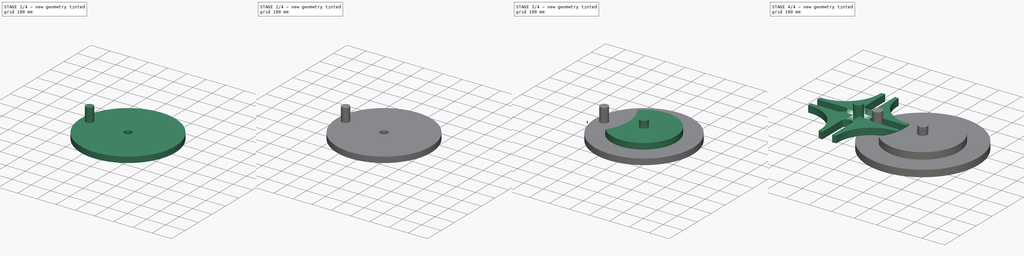
[diagram: build sequence overview — one tinted view per stage of 4, left to right]
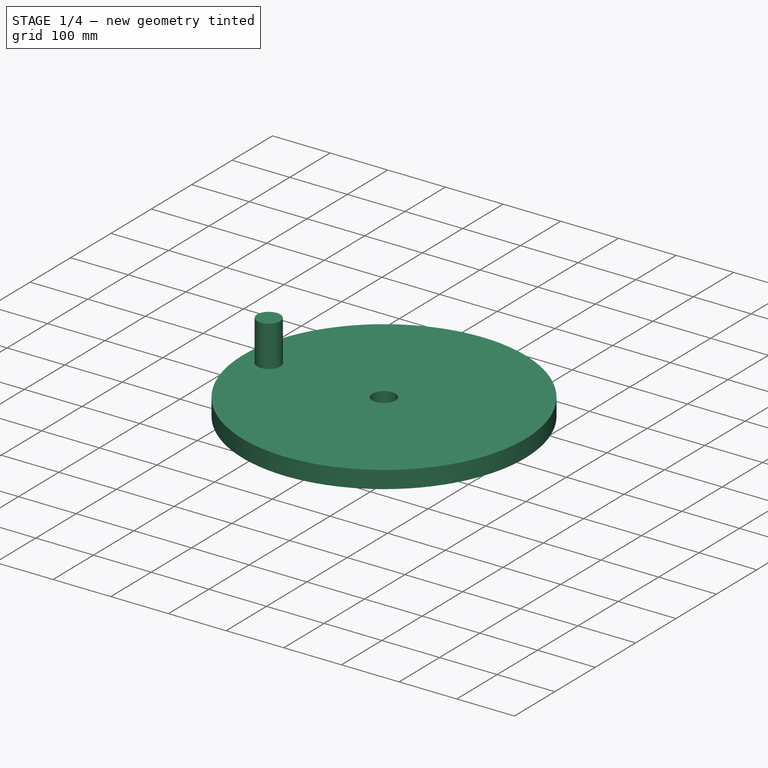
[diagram: stage 1 of 4 — iso view after this stage's code; geometry added in this stage tinted green]
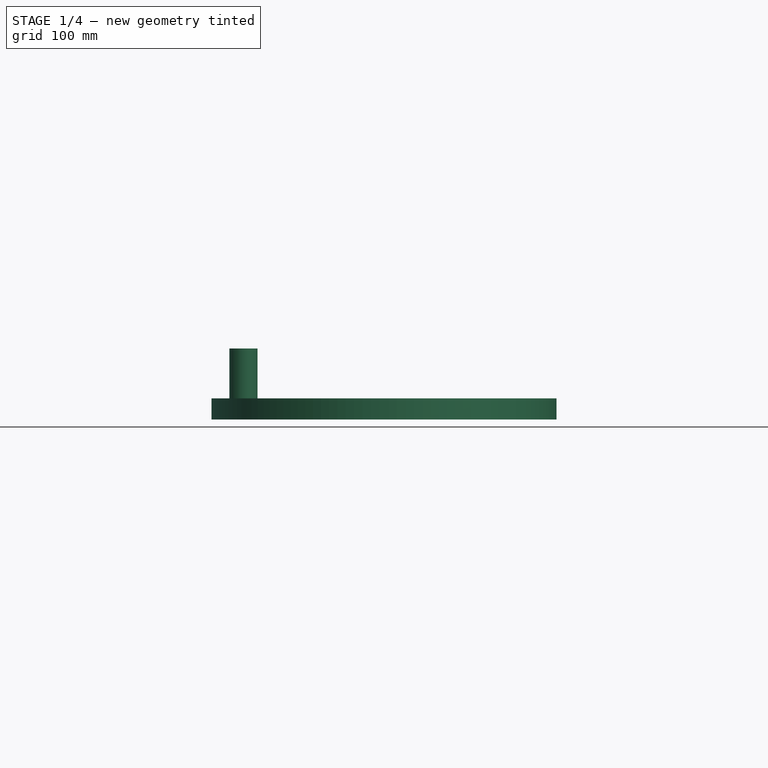
[diagram: stage 1 of 4 — front view after this stage's code; geometry added in this stage tinted green]
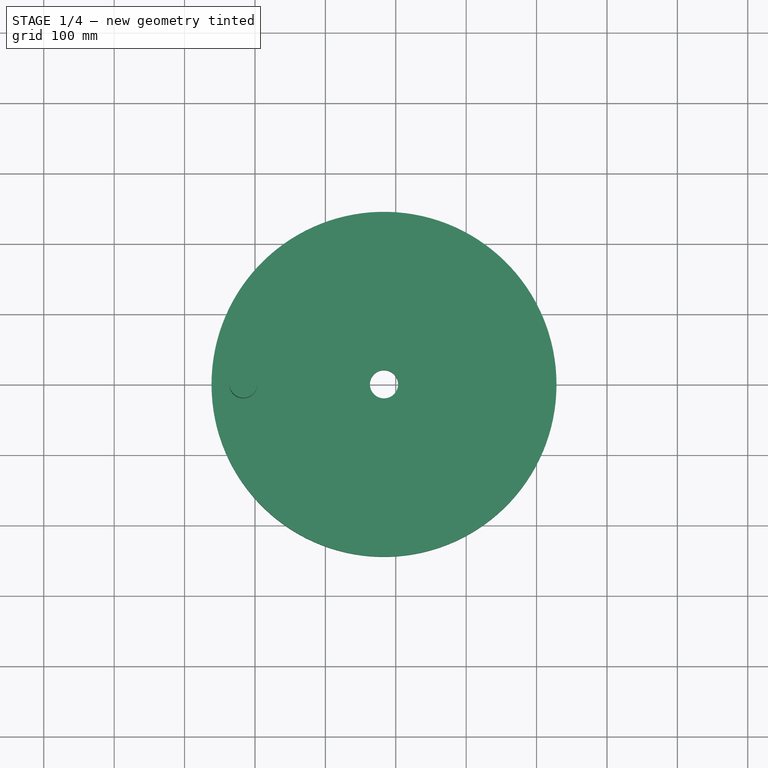
[diagram: stage 1 of 4 — top view after this stage's code; geometry added in this stage tinted green]
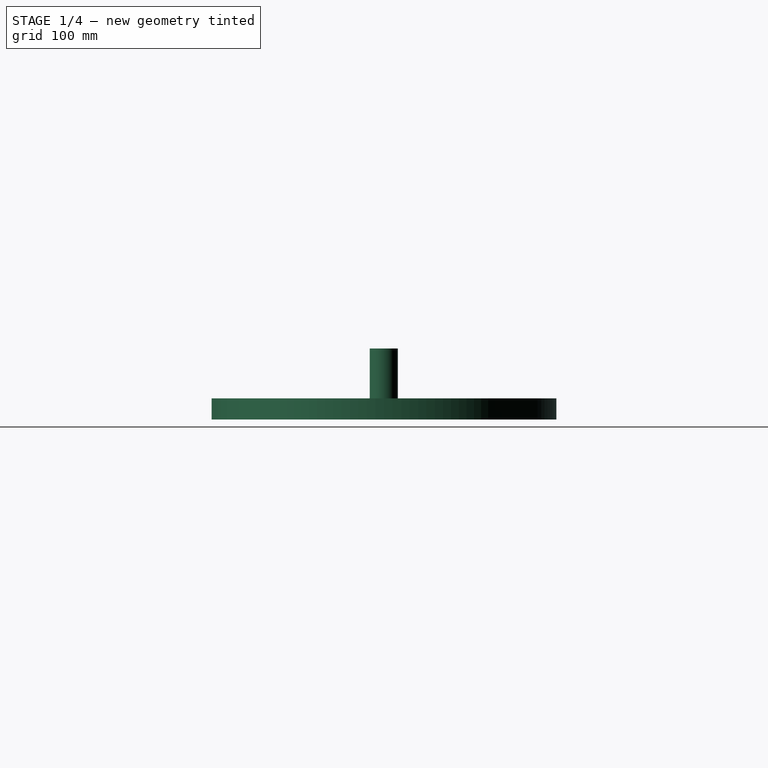
[diagram: stage 1 of 4 — right view after this stage's code; geometry added in this stage tinted green]
FCSTD DOCUMENT  (FreeCAD 0.18R4 (GitTag))
Label: genevatutorial7
License: All rights reserved
LicenseURL: http://en.wikipedia.org/wiki/All_rights_reserved
objects: Part::FeaturePython×5, Sketcher::SketchObject×4, PartDesign::Pad×3, PartDesign::Body×3, Part::Compound×3, Part::Cylinder×2
note: 23 computed .brp shape members not serialized (recipe doc carries the construction recipe); baked Part::Feature solids carry a one-line shape summary decoded from their .brp

FEATURE [PartDesign::Body] Body002  label="LockWheel001"
  Group = -> [Sketch001,Pad001]
  Origin = -> Origin002
  Tip = -> Pad001
FEATURE [PartDesign::Pad] Pad002
  Length = 30
  Length2 = 100
  Profile = -> Sketch003
  Type = 0
FEATURE [Part::Cylinder] Cylinder001  label="Cylinder"
  Angle = 360
  AttacherType = Attacher::AttachEngine3D
  Height = 10
  Placement = pos=(263,0,92) rot=(0,0,1;0rad)
  Radius = 2
FEATURE [Part::FeaturePython] Scale002  label="LockWheelPin"  # Draft clone (typed FeaturePython)
  Fuse = false
  Objects = -> [Cylinder001]
  Placement = pos=(83.5731,0.32925,1) rot=(0,0,1;0rad)
  Scale = (10,10,10)
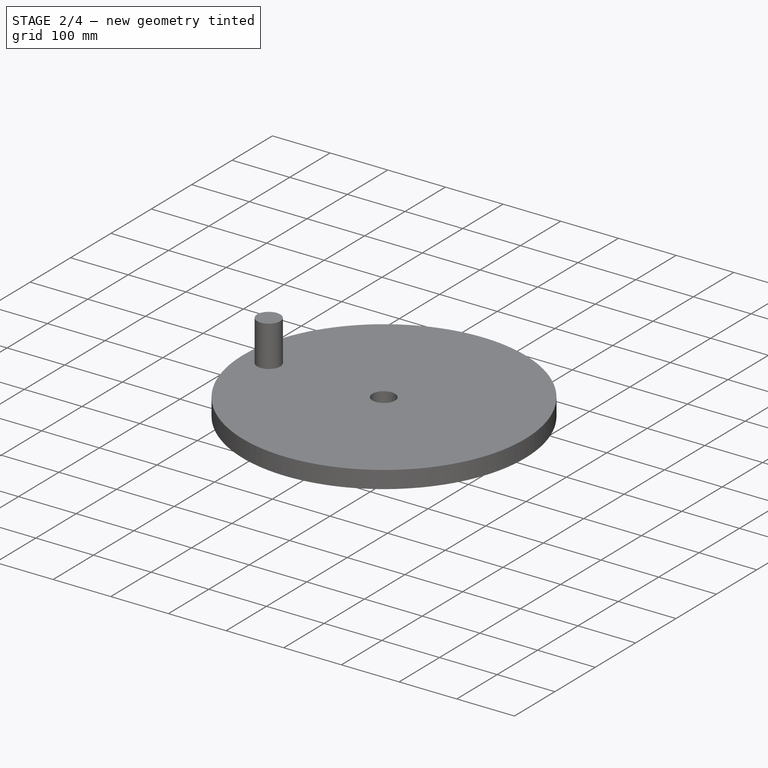
[diagram: stage 2 of 4 — iso view after this stage's code; geometry added in this stage tinted green]
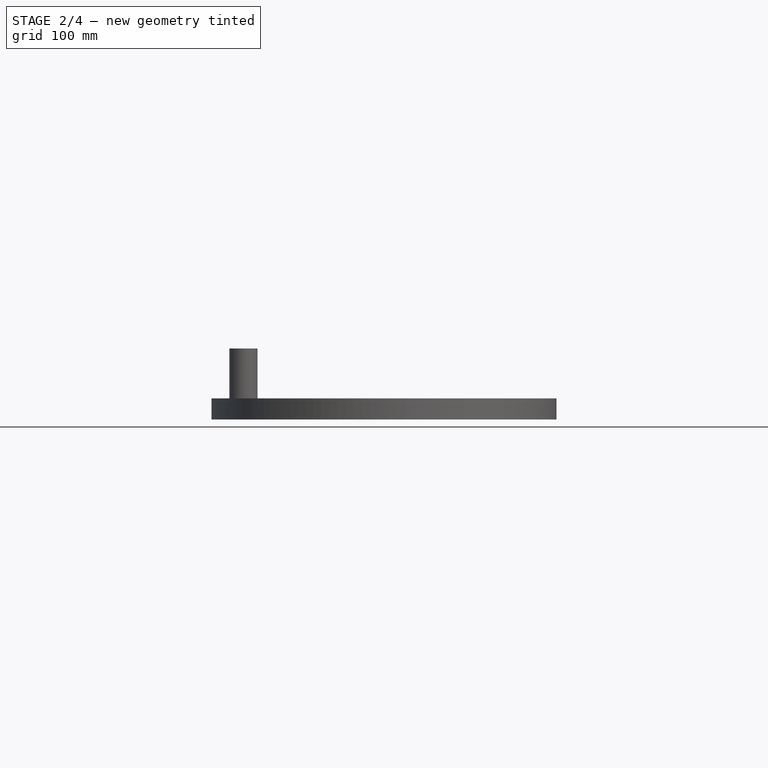
[diagram: stage 2 of 4 — front view after this stage's code; geometry added in this stage tinted green]
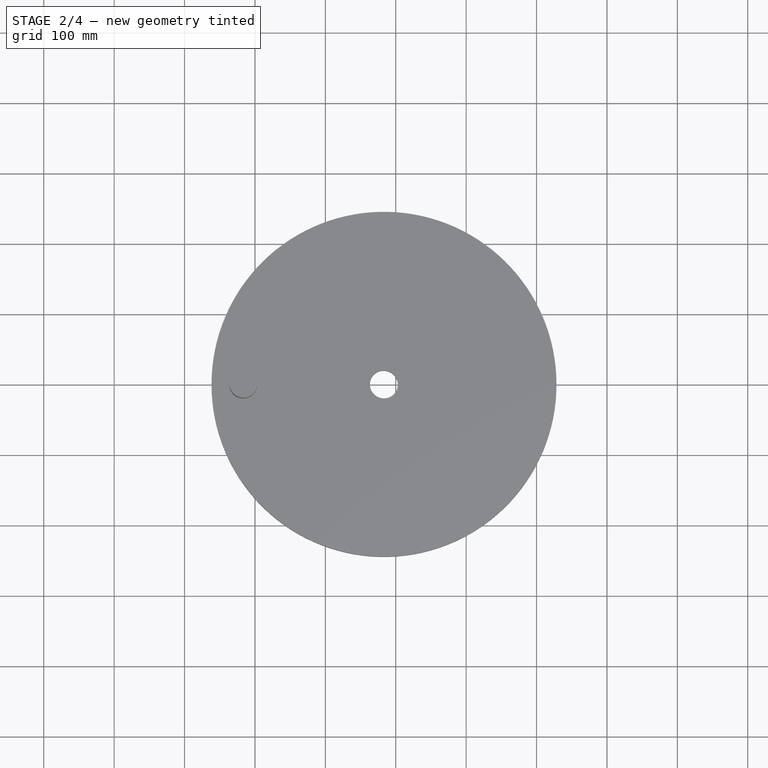
[diagram: stage 2 of 4 — top view after this stage's code; geometry added in this stage tinted green]
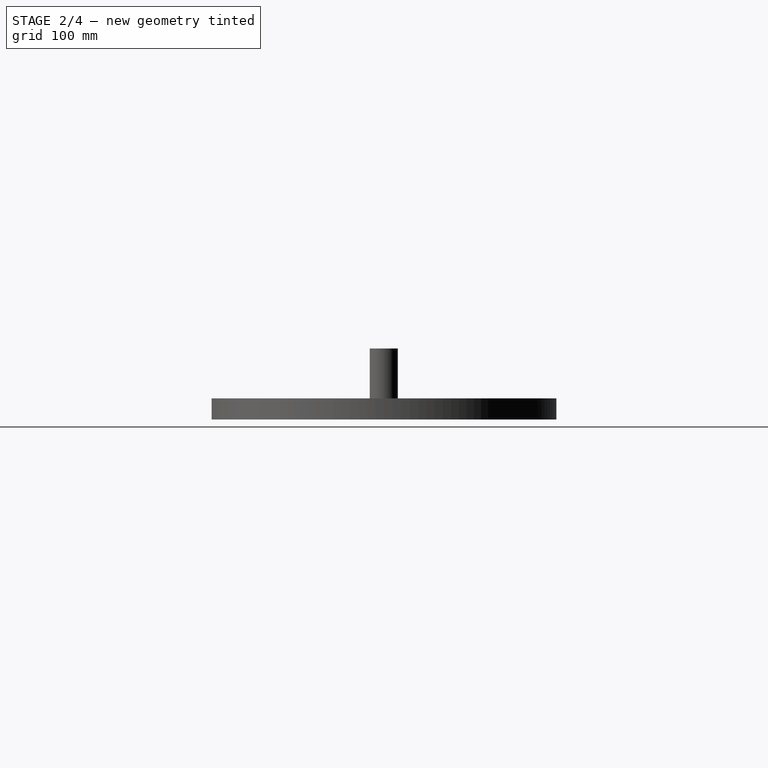
[diagram: stage 2 of 4 — right view after this stage's code; geometry added in this stage tinted green]
FEATURE [PartDesign::Body] Body  label="GenevaWheel"
  Group = -> [Pad,Sketch002]
  Origin = -> Origin
  Tip = -> Pad
FEATURE [Sketcher::SketchObject] Sketch003  label="PinWheel"
  MapMode = 5
  Support = -> [XY_Plane001]
  sketch-geometry (5):
    g0: Circle CenterX=283.272 CenterY=0.574661 CenterZ=0 NormalX=0 NormalY=0 NormalZ=1 AngleXU=0 Radius=245
    g1: Circle CenterX=283.272 CenterY=0.574661 CenterZ=0 NormalX=0 NormalY=0 NormalZ=1 AngleXU=0 Radius=20
    g2: Circle [constr] CenterX=83.2721 CenterY=0.574661 CenterZ=0 NormalX=0 NormalY=0 NormalZ=1 AngleXU=0 Radius=18
    g3: Circle CenterX=83.2721 CenterY=0.574661 CenterZ=0 NormalX=0 NormalY=0 NormalZ=1 AngleXU=0 Radius=4
    g4: LineSegment [constr] StartX=83.2721 StartY=0.574661 StartZ=0 EndX=283.272 EndY=0.574661 EndZ=0
  constraints (10):
    c: Radius(g0) = 245
    c: Radius(g1) = 20
    c: Coincident(g1,g0)
    c: Radius(g2) = 18
    c: Radius(g3) = 4
    c: Coincident(g2,g3)
    c: Distance(g3,g0) = 200
    c: Coincident(g0,g4)
    c: Coincident(g4,g3)
    c: Horizontal(g4)
FEATURE [PartDesign::Pad] Pad001
  Length = 30
  Length2 = 100
  Profile = -> Sketch001
  Type = 0
FEATURE [PartDesign::Body] Body001  label="PinWheel001"
  Group = -> [Sketch003,Pad002]
  Origin = -> Origin001
  Tip = -> Pad002
FEATURE [Part::Compound] Compound  label="PinWheelCompound"
  Links = -> [Pad002]
FEATURE [Part::FeaturePython] Embed  # WARN: FeaturePython — macro-defined, semantics opaque (R4)
  Base = -> Compound
  Tolerance = 0
  Tool = -> Scale002
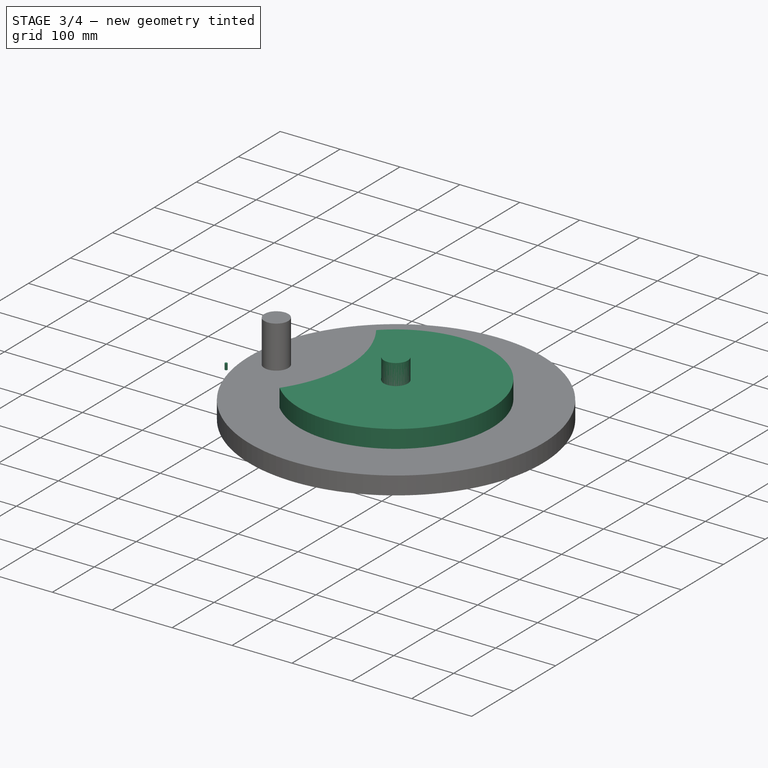
[diagram: stage 3 of 4 — iso view after this stage's code; geometry added in this stage tinted green]
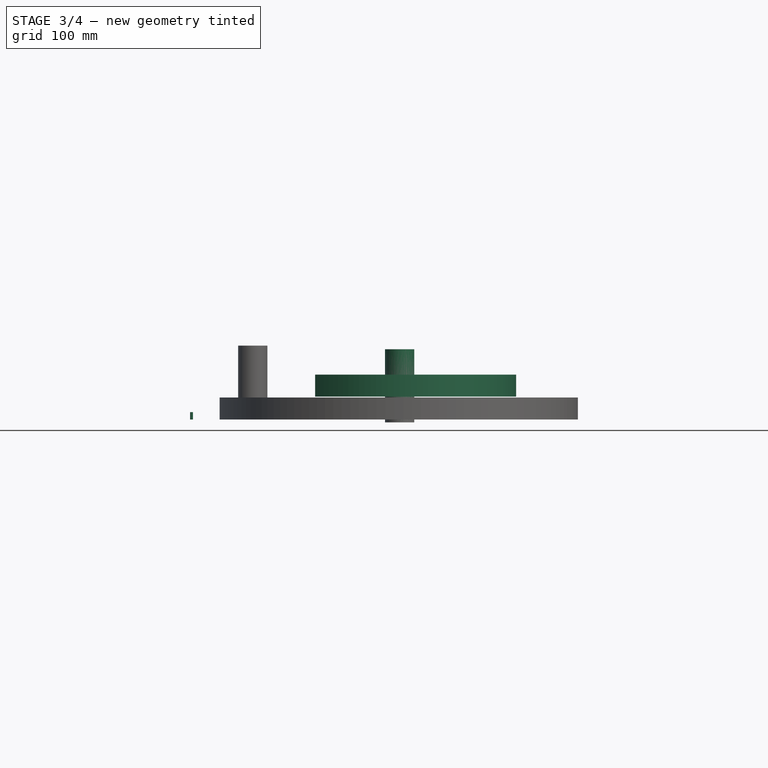
[diagram: stage 3 of 4 — front view after this stage's code; geometry added in this stage tinted green]
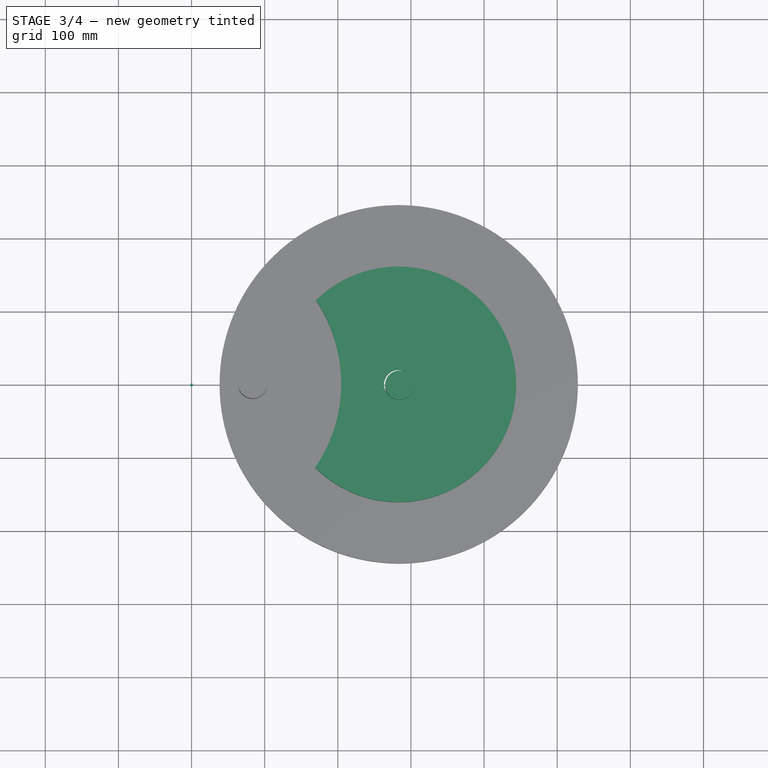
[diagram: stage 3 of 4 — top view after this stage's code; geometry added in this stage tinted green]
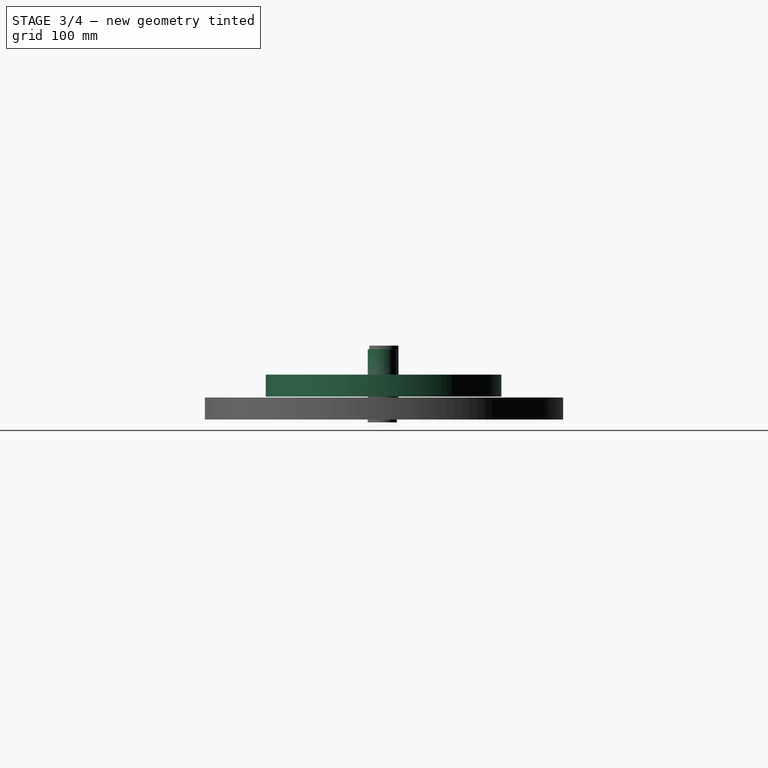
[diagram: stage 3 of 4 — right view after this stage's code; geometry added in this stage tinted green]
FEATURE [Part::Compound] Compound001  label="LockWheelCompound"
  Links = -> [Pad001]
  Placement = pos=(0,0,31.2445) rot=(0,0,1;0rad)
FEATURE [Part::Cylinder] Cylinder  label="MalteaseCrossCyi"
  Angle = 360
  AttacherType = Attacher::AttachEngine3D
  Height = 10
  Radius = 2
FEATURE [Part::FeaturePython] Scale001  label="PinWheelAxis"  # Draft clone (typed FeaturePython)
  Fuse = false
  Objects = -> [Cylinder001]
  Placement = pos=(284.573,-1.67075,-4) rot=(0,0,1;0rad)
  Scale = (10,10,10)
FEATURE [Part::FeaturePython] Embed001  label="PinLockWheelEmbed"  # WARN: FeaturePython — macro-defined, semantics opaque (R4)
  Base = -> Embed
  Tolerance = 0
  Tool = -> Compound001
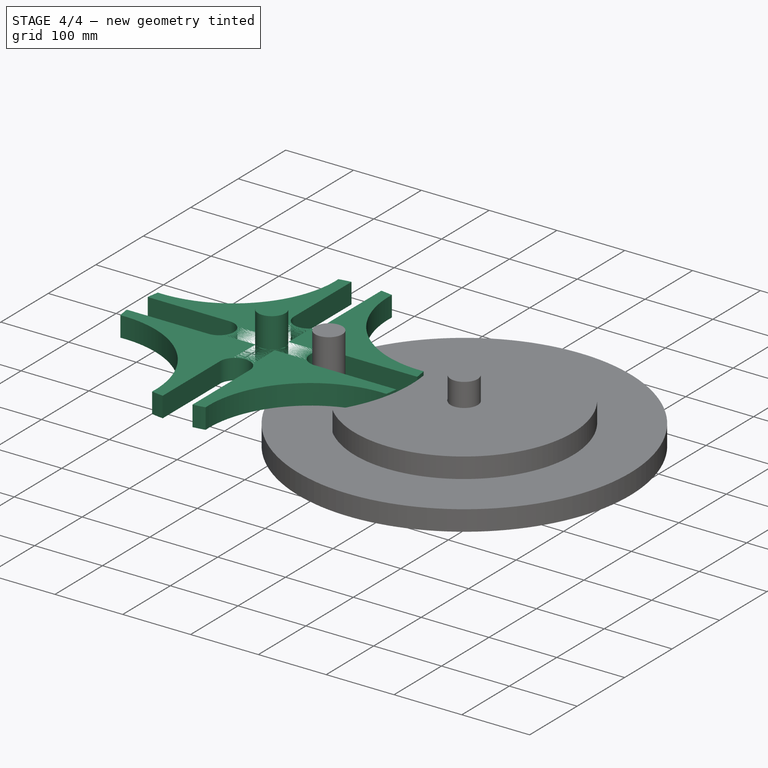
[diagram: stage 4 of 4 — iso view after this stage's code; geometry added in this stage tinted green]
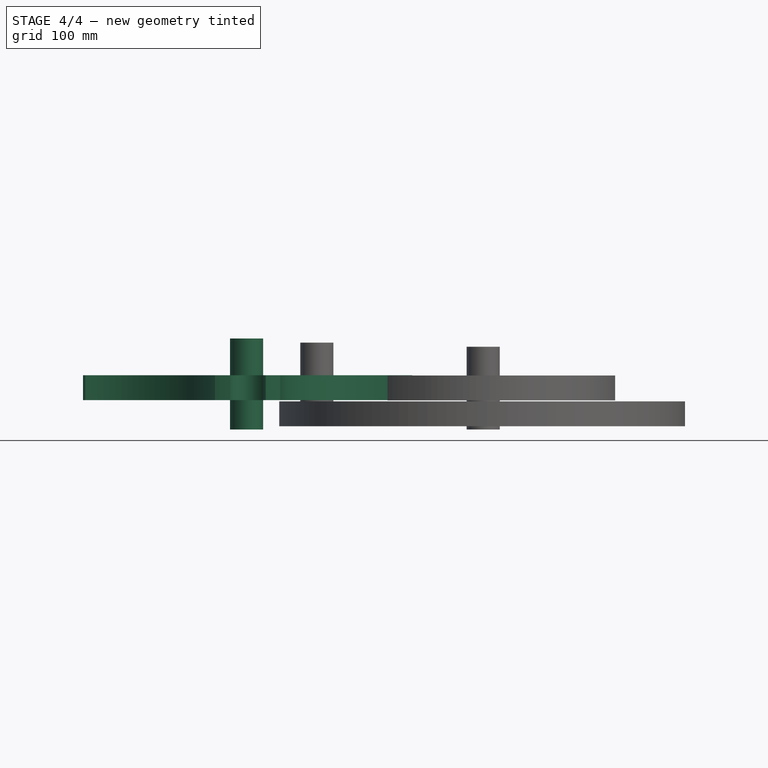
[diagram: stage 4 of 4 — front view after this stage's code; geometry added in this stage tinted green]
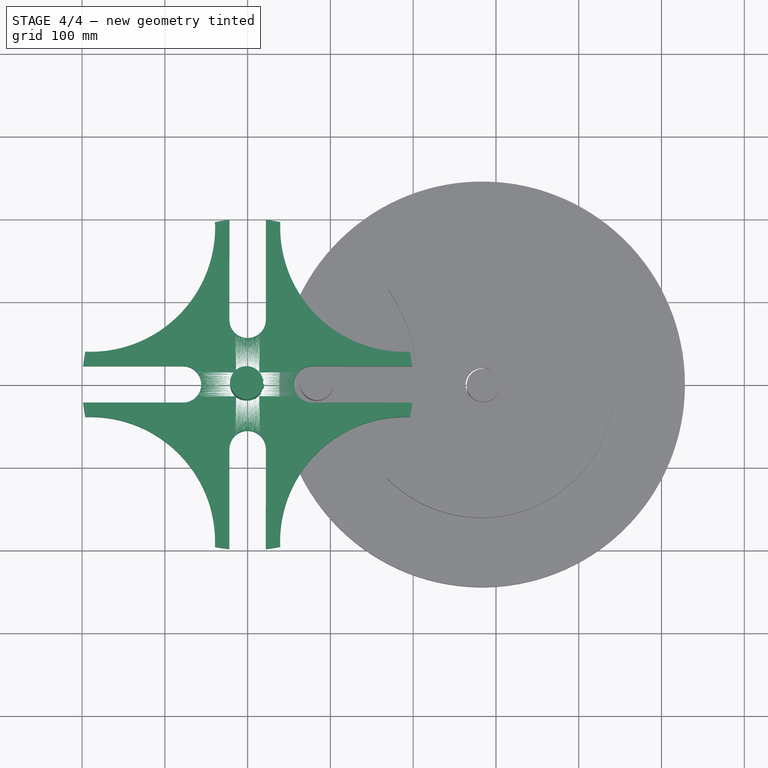
[diagram: stage 4 of 4 — top view after this stage's code; geometry added in this stage tinted green]
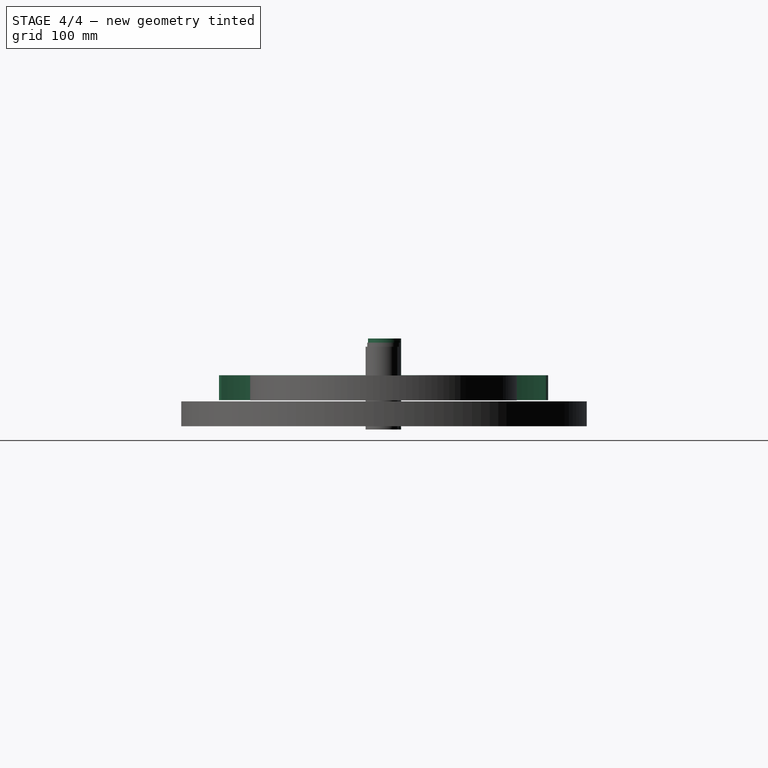
[diagram: stage 4 of 4 — right view after this stage's code; geometry added in this stage tinted green]
FEATURE [Sketcher::SketchObject] Sketch  label="Guide"
  MapMode = 5
  Support = -> [XY_Plane]
  sketch-geometry (3):
    g0: LineSegment StartX=0 StartY=0 StartZ=0 EndX=141.421 EndY=141.421 EndZ=0
    g1: LineSegment StartX=141.421 StartY=141.421 StartZ=0 EndX=282.843 EndY=0 EndZ=0
    g2: LineSegment StartX=282.843 StartY=0 StartZ=0 EndX=0 EndY=0 EndZ=0
  constraints (8):
    c: Coincident(g0,g1)
    c: Coincident(g1,g2)
    c: Coincident(g2,g0)
    c: Horizontal(g2)
    c: Angle(g0,g1) = 1.5708
    c: Coincident(g-1,g0)
    c: Angle(g2,g0) = 0.785398
    c: Distance(g0) = 200
FEATURE [Sketcher::SketchObject] Sketch001  label="LockWheel"
  ExternalGeometry = -> [Sketch]
  MapMode = 5
  Support = -> [XY_Plane002]
  sketch-geometry (3):
    g0: Circle CenterX=282.843 CenterY=0 CenterZ=0 NormalX=0 NormalY=0 NormalZ=1 AngleXU=0 Radius=20
    g1: ArcOfCircle CenterX=0.575434 CenterY=1.23959 CenterZ=0 NormalX=0 NormalY=0 NormalZ=1 AngleXU=0 Radius=204 StartAngle=5.68329 EndAngle=6.87429
    g2: ArcOfCircle CenterX=282.843 CenterY=0 CenterZ=0 NormalX=0 NormalY=0 NormalZ=1 AngleXU=0 Radius=161.09 StartAngle=3.92718 EndAngle=8.63041
  constraints (7):
    c: Radius(g0) = 20
    c: Radius(g1) = 204
    c: Coincident(g1,g2)
    c: Coincident(g1,g2)
    c: Coincident(g2,g0)
    c: Distance(g1,g0) = 161.09
    c: Distance(g1,g0) = 282.27
FEATURE [Sketcher::SketchObject] Sketch002  label="GenvaWheel"
  ExternalGeometry = -> [Sketch]
  MapMode = 5
  Support = -> [XY_Plane]
  sketch-geometry (36):
    g0: ArcOfCircle CenterX=-1.97273e-11 CenterY=78 CenterZ=0 NormalX=0 NormalY=0 NormalZ=1 AngleXU=0 Radius=22 StartAngle=3.14118 EndAngle=6.28277
    g1: LineSegment StartX=22 StartY=77.9909 StartZ=0 EndX=22.05 EndY=198.781 EndZ=0
    g2: LineSegment StartX=-22 StartY=78.0091 StartZ=0 EndX=-21.95 EndY=198.792 EndZ=0
    g3: ArcOfCircle CenterX=189.788 CenterY=189.687 CenterZ=0 NormalX=0 NormalY=0 NormalZ=1 AngleXU=0 Radius=150.454 StartAngle=3.09918 EndAngle=4.75427
    g4: Circle CenterX=0 CenterY=0 CenterZ=0 NormalX=0 NormalY=0 NormalZ=1 AngleXU=0 Radius=20
    g5: Circle [constr] CenterX=0 CenterY=0 CenterZ=0 NormalX=0 NormalY=0 NormalZ=1 AngleXU=0 Radius=200
    g6: LineSegment [constr] StartX=0 StartY=0 StartZ=0 EndX=-1.97273e-11 EndY=78 EndZ=0
    g7: ArcOfCircle CenterX=0 CenterY=0 CenterZ=0 NormalX=0 NormalY=0 NormalZ=1 AngleXU=0 Radius=200 StartAngle=0.109972 EndAngle=0.198121
    g8: ArcOfCircle CenterX=78 CenterY=0 CenterZ=0 NormalX=0 NormalY=0 NormalZ=1 AngleXU=0 Radius=22 StartAngle=1.57038 EndAngle=4.71198
    g9: LineSegment StartX=77.9909 StartY=-22 StartZ=0 EndX=198.781 EndY=-22.05 EndZ=0
    g10: LineSegment StartX=78.0091 StartY=22 StartZ=0 EndX=198.792 EndY=21.95 EndZ=0
    g11: ArcOfCircle CenterX=189.687 CenterY=-189.788 CenterZ=0 NormalX=0 NormalY=0 NormalZ=1 AngleXU=0 Radius=150.454 StartAngle=1.52838 EndAngle=3.18347
    g12: Circle CenterX=0 CenterY=0 CenterZ=0 NormalX=0 NormalY=0 NormalZ=1 AngleXU=0 Radius=20
    g13: Circle [constr] CenterX=0 CenterY=0 CenterZ=0 NormalX=0 NormalY=0 NormalZ=1 AngleXU=0 Radius=200
    g14: LineSegment [constr] StartX=0 StartY=0 StartZ=0 EndX=78 EndY=0 EndZ=0
    g15: ArcOfCircle CenterX=0 CenterY=0 CenterZ=0 NormalX=0 NormalY=0 NormalZ=1 AngleXU=0 Radius=200 StartAngle=6.08453 EndAngle=6.17271
    g16: ArcOfCircle CenterX=1.11e-14 CenterY=-78 CenterZ=0 NormalX=0 NormalY=0 NormalZ=1 AngleXU=0 Radius=22 StartAngle=6.28277 EndAngle=9.42436
    g17: LineSegment StartX=-22 StartY=-77.9909 StartZ=0 EndX=-22.05 EndY=-198.781 EndZ=0
    g18: LineSegment StartX=22 StartY=-78.0091 StartZ=0 EndX=21.95 EndY=-198.792 EndZ=0
    g19: ArcOfCircle CenterX=-189.788 CenterY=-189.687 CenterZ=0 NormalX=0 NormalY=0 NormalZ=1 AngleXU=0 Radius=150.454 StartAngle=6.24077 EndAngle=7.89586
    g20: Circle CenterX=0 CenterY=0 CenterZ=0 NormalX=0 NormalY=0 NormalZ=1 AngleXU=0 Radius=20
    g21: Circle [constr] CenterX=0 CenterY=0 CenterZ=0 NormalX=0 NormalY=0 NormalZ=1 AngleXU=0 Radius=200
    g22: LineSegment [constr] StartX=0 StartY=0 StartZ=0 EndX=1.11e-14 EndY=-78 EndZ=0
    g23: ArcOfCircle CenterX=0 CenterY=0 CenterZ=0 NormalX=0 NormalY=0 NormalZ=1 AngleXU=0 Radius=200 StartAngle=4.82236 EndAngle=4.91051
    g24: ArcOfCircle CenterX=0 CenterY=0 CenterZ=0 NormalX=0 NormalY=0 NormalZ=1 AngleXU=0 Radius=200 StartAngle=4.51374 EndAngle=4.60191
    g25: ArcOfCircle CenterX=-78 CenterY=3.01e-14 CenterZ=0 NormalX=0 NormalY=0 NormalZ=1 AngleXU=0 Radius=22 StartAngle=4.71198 EndAngle=7.85357
    g26: LineSegment StartX=-77.9909 StartY=22 StartZ=0 EndX=-198.781 EndY=22.05 EndZ=0
    g27: LineSegment StartX=-78.0091 StartY=-22 StartZ=0 EndX=-198.792 EndY=-21.95 EndZ=0
    g28: ArcOfCircle CenterX=-189.687 CenterY=189.788 CenterZ=0 NormalX=0 NormalY=0 NormalZ=1 AngleXU=0 Radius=150.454 StartAngle=4.66998 EndAngle=6.32507
    g29: Circle CenterX=0 CenterY=0 CenterZ=0 NormalX=0 NormalY=0 NormalZ=1 AngleXU=0 Radius=20
    g30: Circle [constr] CenterX=0 CenterY=0 CenterZ=0 NormalX=0 NormalY=0 NormalZ=1 AngleXU=0 Radius=200
    g31: LineSegment [constr] StartX=0 StartY=0 StartZ=0 EndX=-78 EndY=3.01e-14 EndZ=0
    g32: ArcOfCircle CenterX=0 CenterY=0 CenterZ=0 NormalX=0 NormalY=0 NormalZ=1 AngleXU=0 Radius=200 StartAngle=3.25156 EndAngle=3.33971
    g33: ArcOfCircle CenterX=0 CenterY=0 CenterZ=0 NormalX=0 NormalY=0 NormalZ=1 AngleXU=0 Radius=200 StartAngle=2.94294 EndAngle=3.03112
    g34: ArcOfCircle CenterX=0 CenterY=0 CenterZ=0 NormalX=0 NormalY=0 NormalZ=1 AngleXU=0 Radius=200 StartAngle=1.68077 EndAngle=1.76892
    g35: ArcOfCircle CenterX=0 CenterY=0 CenterZ=0 NormalX=0 NormalY=0 NormalZ=1 AngleXU=0 Radius=200 StartAngle=1.37214 EndAngle=1.46032
  constraints (112):
    c: Tangent(g0,g2) = 1.5708
    c: Tangent(g0,g1) = -1.5708
    c: Distance(g0,g0) = 44
    c: Radius(g4) = 20
    c: Distance(g0,g2) = 122.77
    c: Distance(g3,g3) = 221.55
    c: Distance(g2,g1) = 44
    c: Distance(g0,g4) = 78
    c: Distance(g1,g3) = 17.63
    c: Radius(g5) = 200
    c: Coincident(g4,g5)
    c: PointOnObject(g2,g5)
    c: PointOnObject(g1,g5)
    c: PointOnObject(g3,g5)
    c: PointOnObject(g3,g5)
    c: Distance(g3,g4) = 268.33
    c: Coincident(g4,g6)
    c: Coincident(g6,g0)
    c: Coincident(g7,g-1)
    c: Radius(g7) = 200
    c: Tangent(g8,g10) = 1.5708
    c: Tangent(g8,g9) = -1.5708
    c: Distance(g8,g8) = 44
    c: Radius(g12) = 20
    c: Distance(g8,g10) = 122.77
    c: Distance(g11,g11) = 221.55
    c: Distance(g10,g9) = 44
    c: Distance(g8,g12) = 78
    c: Distance(g9,g11) = 17.63
    c: Radius(g13) = 200
    c: Coincident(g12,g13)
    c: PointOnObject(g10,g13)
    c: PointOnObject(g9,g13)
    c: PointOnObject(g11,g13)
    c: PointOnObject(g11,g13)
    c: Distance(g11,g12) = 268.33
    c: Coincident(g12,g14)
    c: Coincident(g14,g8)
    c: Coincident(g7,g12)
    c: Horizontal(g14)
    c: PointOnObject(g7,g10)
    c: PointOnObject(g15,g9)
    c: Equal(g7,g15)
    c: PointOnObject(g23,g11)
    c: PointOnObject(g15,g11)
    c: Coincident(g7,g15)
    c: Tangent(g16,g18) = 1.5708
    c: Tangent(g16,g17) = -1.5708
    c: Distance(g16,g16) = 44
    c: Radius(g20) = 20
    c: Distance(g16,g18) = 122.77
    c: Distance(g19,g19) = 221.55
    c: Distance(g18,g17) = 44
    c: Distance(g16,g20) = 78
    c: Distance(g17,g19) = 17.63
    c: Radius(g21) = 200
    c: Coincident(g20,g21)
    c: PointOnObject(g18,g21)
    c: PointOnObject(g17,g21)
    c: PointOnObject(g19,g21)
    c: PointOnObject(g19,g21)
    c: Distance(g19,g20) = 268.33
    c: Coincident(g20,g22)
    c: Coincident(g22,g16)
    c: Coincident(g20,g7)
    c: Angle(g22,g14) = 1.5708
    c: Equal(g7,g23)
    c: PointOnObject(g24,g17)
    c: PointOnObject(g23,g18)
    c: Coincident(g7,g23)
    c: Equal(g7,g24)
    c: PointOnObject(g32,g19)
    c: PointOnObject(g24,g19)
    c: Coincident(g7,g24)
    c: Tangent(g25,g27) = 1.5708
    c: Tangent(g25,g26) = -1.5708
    c: Distance(g25,g25) = 44
    c: Radius(g29) = 20
    c: Distance(g25,g27) = 122.77
    c: Distance(g28,g28) = 221.55
    c: Distance(g27,g26) = 44
    c: Distance(g25,g29) = 78
    c: Distance(g26,g28) = 17.63
    c: Radius(g30) = 200
    c: Coincident(g29,g30)
    c: PointOnObject(g27,g30)
    c: PointOnObject(g26,g30)
    c: PointOnObject(g28,g30)
    c: PointOnObject(g28,g30)
    c: Distance(g28,g29) = 268.33
    c: Coincident(g29,g31)
    c: Coincident(g31,g25)
    c: Coincident(g29,g7)
    c: Angle(g31,g22) = 1.5708
    c: Equal(g7,g32)
    c: PointOnObject(g33,g26)
    c: PointOnObject(g32,g27)
    c: Coincident(g7,g32)
    c: Equal(g7,g33)
    c: PointOnObject(g34,g28)
    c: PointOnObject(g33,g28)
    c: Coincident(g7,g33)
    c: Coincident(g7,g4)
    c: Angle(g6,g31) = 1.5708
    c: Equal(g7,g34)
    c: PointOnObject(g35,g1)
    c: PointOnObject(g34,g2)
    c: Coincident(g7,g34)
    c: Equal(g7,g35)
    c: PointOnObject(g7,g3)
    c: PointOnObject(g35,g3)
    c: Coincident(g7,g35)
FEATURE [PartDesign::Pad] Pad
  Length = 30
  Length2 = 100
  Profile = -> Sketch002
  Type = 0
FEATURE [Part::Compound] Compound002  label="MalteaseCrossCompound"
  Links = -> [Body]
  Placement = pos=(0,0,31.5059) rot=(0,0,1;0rad)
FEATURE [Part::FeaturePython] Scale  label="MalteaseCrossAxis"  # Draft clone (typed FeaturePython)
  Fuse = false
  Objects = -> [Cylinder]
  Placement = pos=(-1.28763,1.24733,-4) rot=(0,0,1;0rad)
  Scale = (10,10,11)
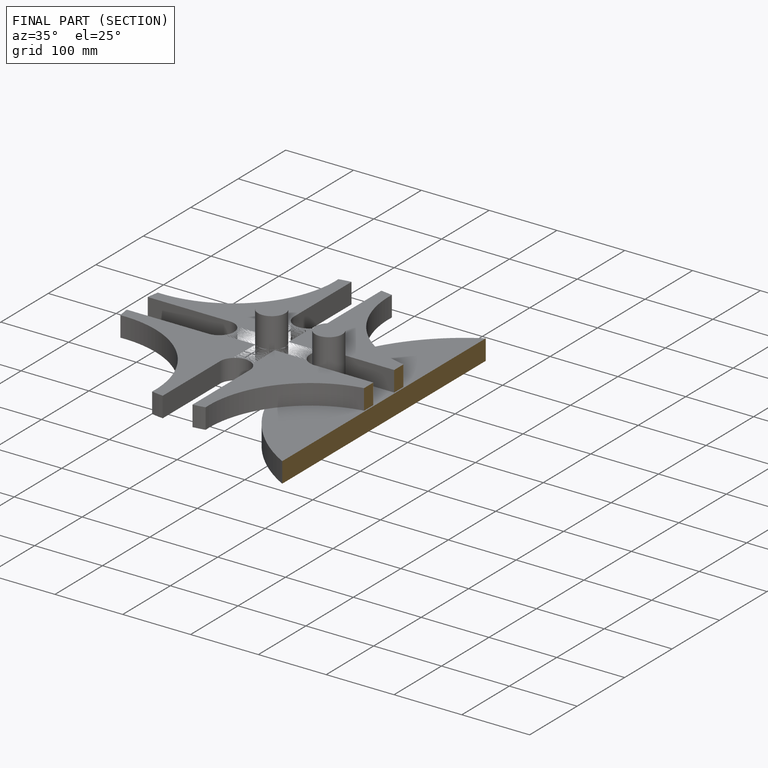
[diagram: finished part — half-section view (interior)]
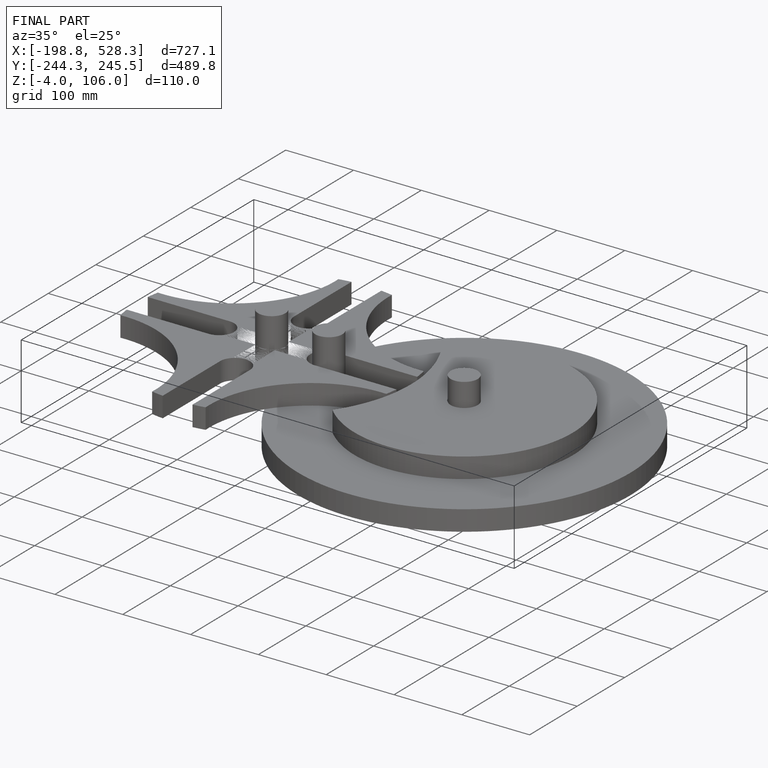
[diagram: finished part — iso view with bounding-box wireframe]
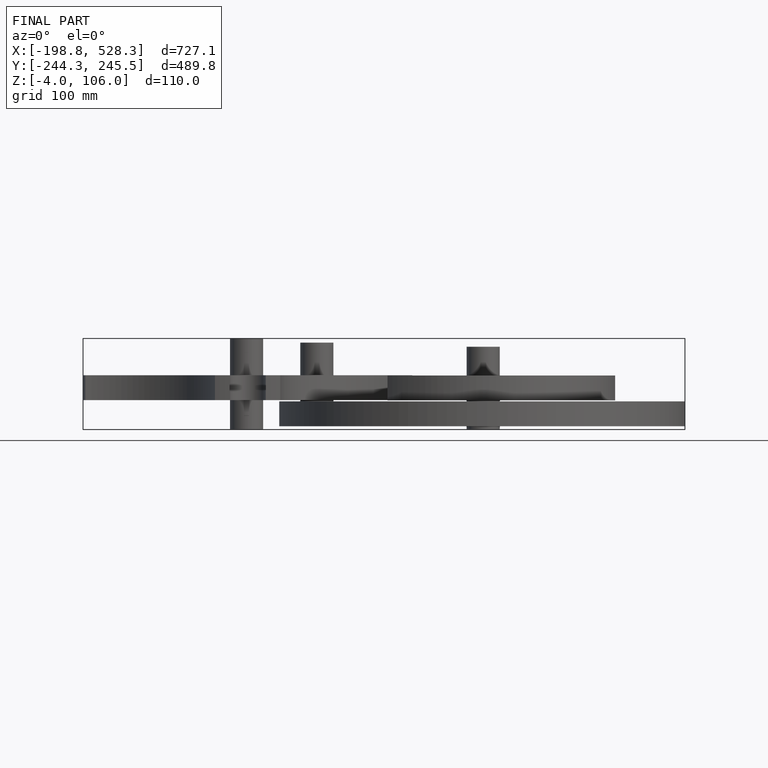
[diagram: finished part — front view with bounding-box wireframe]
